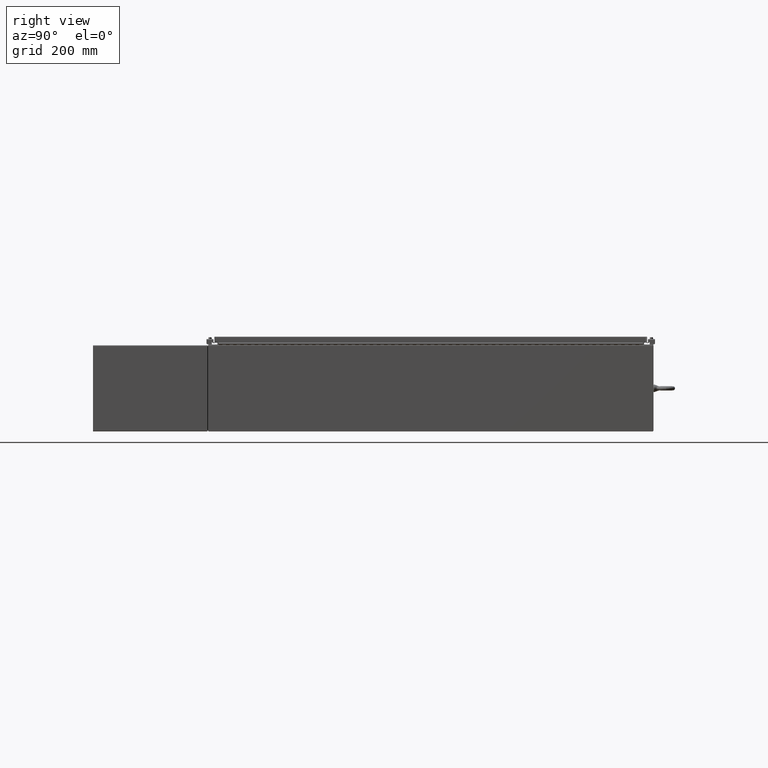
[diagram: clean part render]
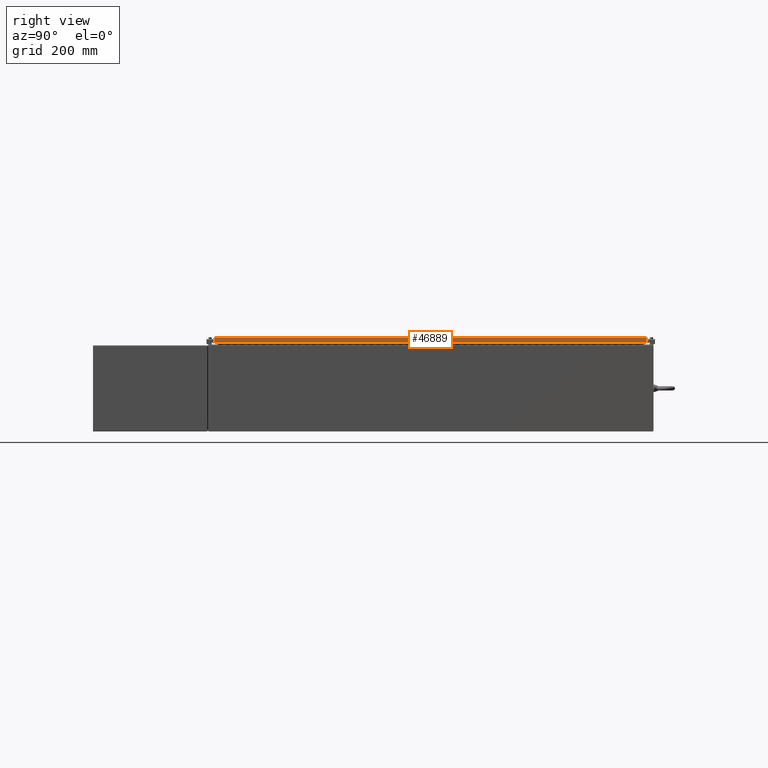
[diagram: same view with one face highlighted and labeled with its STEP entity id]
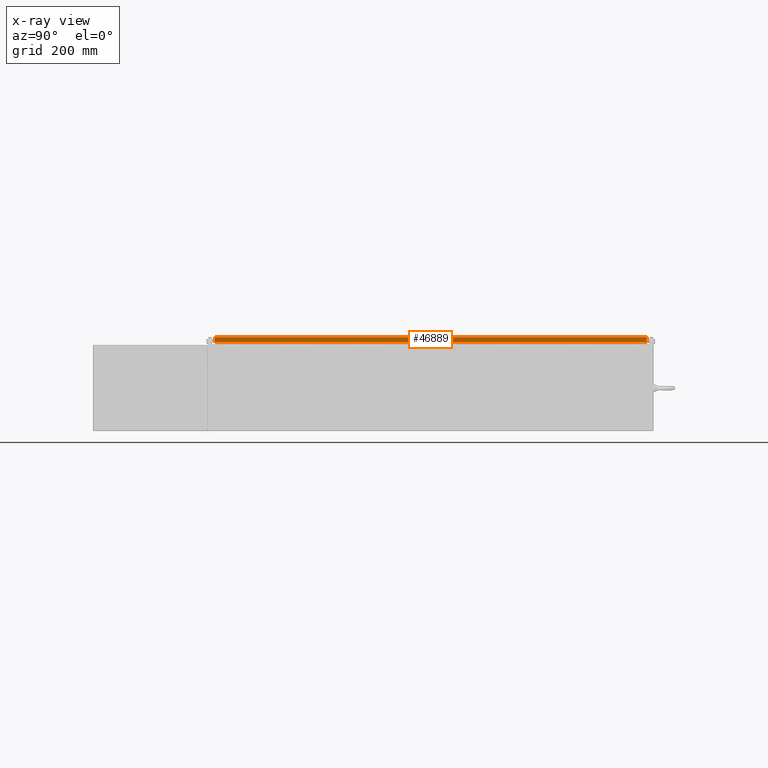
[diagram: x-ray of the same camera — body ghosted, the highlighted face saturated]
A machine part, right view. The second image highlights one B-rep face of the part: STEP entity #46889.
The next image is the same camera in x-ray: the body ghosted, the highlighted face saturated — about 0% of this face is hidden behind the body in this view.
In plain terms, the highlighted planar face has unit normal (1, 0, 0).
Its self-contained STEP definition (entity closure, byte-faithful):
#799 = VECTOR ( 'NONE', #23136, 39.37007874015748100 ) ;
#3025 = VECTOR ( 'NONE', #46177, 39.37007874015748100 ) ;
#6358 = VERTEX_POINT ( 'NONE', #40952 ) ;
#7247 = FACE_OUTER_BOUND ( 'NONE', #61770, .T. ) ;
#8544 = CARTESIAN_POINT ( 'NONE',  ( 14.00550000000000000, -30.01705786437626600, -0.07469999999999976700 ) ) ;
#9331 = VERTEX_POINT ( 'NONE', #16699 ) ;
#10787 = EDGE_CURVE ( 'NONE', #52427, #60101, #47671, .T. ) ;
#11941 = CARTESIAN_POINT ( 'NONE',  ( 14.00550000000000000, 0.0000000000000000000, -0.08770000000000004200 ) ) ;
#14336 = DIRECTION ( 'NONE',  ( 1.000000000000000000, 0.0000000000000000000, 3.034122441942816500E-015 ) ) ;
#16699 = CARTESIAN_POINT ( 'NONE',  ( 14.00550000000000100, 30.01705786437628000, -0.7949999999999997100 ) ) ;
#17206 = CARTESIAN_POINT ( 'NONE',  ( 14.00550000000000000, -30.01705786437626600, -0.08770000000000004200 ) ) ;
#17734 = CARTESIAN_POINT ( 'NONE',  ( 14.00550000000000000, 30.01705786437627000, 2.523632102775302700E-013 ) ) ;
#20152 = ORIENTED_EDGE ( 'NONE', *, *, #25698, .T. ) ;
#23136 = DIRECTION ( 'NONE',  ( -3.034122441942816500E-015, -6.982962677686267500E-015, 1.000000000000000000 ) ) ;
#24534 = EDGE_CURVE ( 'NONE', #9331, #6358, #68966, .T. ) ;
#25698 = EDGE_CURVE ( 'NONE', #6358, #60101, #39314, .T. ) ;
#35698 = PLANE ( 'NONE',  #47859 ) ;
#36529 = VECTOR ( 'NONE', #37807, 39.37007874015748100 ) ;
#37807 = DIRECTION ( 'NONE',  ( 0.0000000000000000000, -1.000000000000000000, 0.0000000000000000000 ) ) ;
#39314 = LINE ( 'NONE', #11941, #66280 ) ;
#40952 = CARTESIAN_POINT ( 'NONE',  ( 14.00550000000000000, 30.01705786437627000, -0.08770000000000007000 ) ) ;
#43081 = ORIENTED_EDGE ( 'NONE', *, *, #24534, .T. ) ;
#46177 = DIRECTION ( 'NONE',  ( -3.034122441942816500E-015, -6.982962677686267500E-015, 1.000000000000000000 ) ) ;
#46599 = CARTESIAN_POINT ( 'NONE',  ( 14.00550000000000000, 0.0000000000000000000, 4.275521551664169500E-014 ) ) ;
#46889 = ADVANCED_FACE ( 'NONE', ( #7247 ), #35698, .T. ) ;
#47671 = LINE ( 'NONE', #8544, #3025 ) ;
#47859 = AXIS2_PLACEMENT_3D ( 'NONE', #46599, #14336, #52021 ) ;
#49809 = ORIENTED_EDGE ( 'NONE', *, *, #10787, .F. ) ;
#51308 = ORIENTED_EDGE ( 'NONE', *, *, #64998, .F. ) ;
#51605 = CARTESIAN_POINT ( 'NONE',  ( 14.00550000000000100, -30.01705786437626200, -0.7949999999999996000 ) ) ;
#52021 = DIRECTION ( 'NONE',  ( 3.034122441942816500E-015, 0.0000000000000000000, -1.000000000000000000 ) ) ;
#52427 = VERTEX_POINT ( 'NONE', #51605 ) ;
#52605 = LINE ( 'NONE', #64667, #36529 ) ;
#60101 = VERTEX_POINT ( 'NONE', #17206 ) ;
#60184 = DIRECTION ( 'NONE',  ( 0.0000000000000000000, -1.000000000000000000, 0.0000000000000000000 ) ) ;
#61770 = EDGE_LOOP ( 'NONE', ( #49809, #51308, #43081, #20152 ) ) ;
#64667 = CARTESIAN_POINT ( 'NONE',  ( 14.00550000000000100, -30.10589999999999500, -0.7949999999999997100 ) ) ;
#64998 = EDGE_CURVE ( 'NONE', #9331, #52427, #52605, .T. ) ;
#66280 = VECTOR ( 'NONE', #60184, 39.37007874015748100 ) ;
#68966 = LINE ( 'NONE', #17734, #799 ) ;